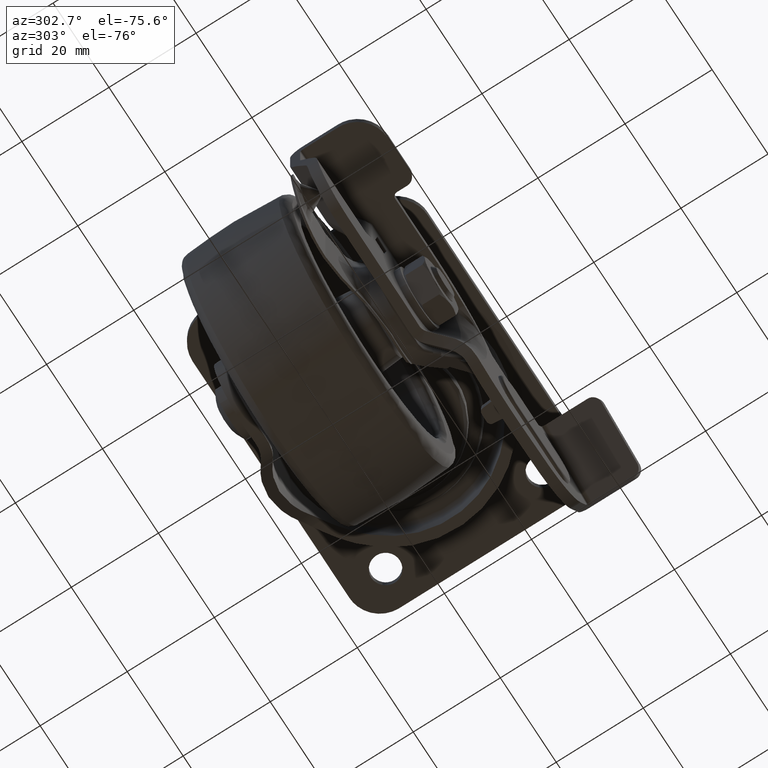
[diagram: clean part render]
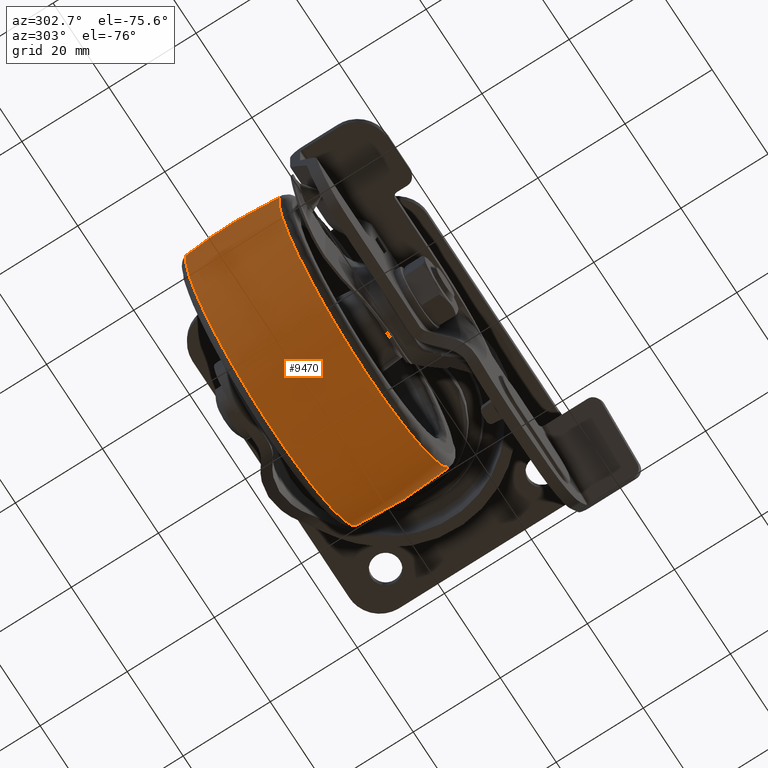
[diagram: same view with one face highlighted and labeled with its STEP entity id]
A machine part, auxiliary view. The second image highlights one B-rep face of the part: STEP entity #9470.
In plain terms, the highlighted face is a freeform B-spline surface patch.
Its self-contained STEP definition (entity closure, byte-faithful):
#8318=CARTESIAN_POINT('',(-15.147315600090741,-10.714285672339919,-77.812728775164445));
#8319=VERTEX_POINT('',#8318);
#8331=CARTESIAN_POINT('',(5.804797996880293,-10.714284824770390,-45.783175648672369));
#8332=VERTEX_POINT('',#8331);
#8333=CARTESIAN_POINT('',(-15.147315600090741,-10.714285672339919,-77.812728775164445));
#8334=CARTESIAN_POINT('',(-12.956917150941210,-10.714285652360561,-77.076997721858191));
#8335=CARTESIAN_POINT('',(-9.085756900598199,-10.714285603763750,-75.270900495800134));
#8336=CARTESIAN_POINT('',(-4.590971312124008,-10.714285514109200,-71.908766926066775));
#8337=CARTESIAN_POINT('',(-1.556125943189460,-10.714285430910390,-68.775817031784527));
#8338=CARTESIAN_POINT('',(0.828183765639484,-10.714285348204600,-65.654242777392682));
#8339=CARTESIAN_POINT('',(2.833944635176843,-10.714285257097901,-62.208526286566681));
#8340=CARTESIAN_POINT('',(4.640518557954514,-10.714285139934789,-57.768556703237138));
#8341=CARTESIAN_POINT('',(5.905911712109960,-10.714284995950820,-52.301331468026731));
#8342=CARTESIAN_POINT('',(6.008160921745331,-10.714284885166689,-48.084835131495431));
#8343=CARTESIAN_POINT('',(5.804797996880293,-10.714284824770390,-45.783175648672369));
#8344=B_SPLINE_CURVE_WITH_KNOTS('',3,(#8333,#8334,#8335,#8336,#8337,#8338,#8339,#8340,#8341,#8342,#8343),.UNSPECIFIED.,.F.,.U.,(4,1,1,1,1,1,1,1,4),(0.000000055326900,6.931848342351579,12.735262670236789,16.765430093014469,19.989565546371519,24.503263900591708,28.694624686934390,34.336853058695063,41.268688920691318),.UNSPECIFIED.);
#8345=EDGE_CURVE('',#8319,#8332,#8344,.T.);
#8461=CARTESIAN_POINT('',(-25.0,-10.714284069167080,-17.575554200752070));
#8462=VERTEX_POINT('',#8461);
#8463=CARTESIAN_POINT('',(5.804797996880293,-10.714284824770390,-45.783175648672369));
#8464=CARTESIAN_POINT('',(5.595506780954307,-10.714284761038479,-43.403986354611490));
#8465=CARTESIAN_POINT('',(4.840309765013501,-10.714284663282770,-39.754636559620678));
#8466=CARTESIAN_POINT('',(2.759066914008306,-10.714284525053120,-34.594355697511190));
#8467=CARTESIAN_POINT('',(0.643506407481044,-10.714284429837420,-31.039828971351660));
#8468=CARTESIAN_POINT('',(-1.778385616886300,-10.714284348458310,-28.001847061095159));
#8469=CARTESIAN_POINT('',(-3.945913584923897,-10.714284288753460,-25.772993682891549));
#8470=CARTESIAN_POINT('',(-6.746880360494585,-10.714284226183580,-23.437171318197560));
#8471=CARTESIAN_POINT('',(-9.669043100055582,-10.714284175950739,-21.561928915144261));
#8472=CARTESIAN_POINT('',(-13.212732931787770,-10.714284129544900,-19.829555075769239));
#8473=CARTESIAN_POINT('',(-16.491459710459829,-10.714284098876719,-18.684641502060611));
#8474=CARTESIAN_POINT('',(-20.641378829398061,-10.714284075018600,-17.793998065783001));
#8475=CARTESIAN_POINT('',(-23.328182015176111,-10.714284069164000,-17.575435377816291));
#8476=CARTESIAN_POINT('',(-25.0,-10.714284069167080,-17.575554200752070));
#8477=B_SPLINE_CURVE_WITH_KNOTS('',3,(#8463,#8464,#8465,#8466,#8467,#8468,#8469,#8470,#8471,#8472,#8473,#8474,#8475,#8476),.UNSPECIFIED.,.F.,.U.,(4,1,1,1,1,1,1,1,1,1,1,4),(0.000000070906282,7.164943963630222,11.105675301968549,16.658519098883819,19.524533836425061,22.748770553097810,25.972925225946039,30.451026503235401,33.137902029489922,37.795135962401091,40.840254886255202,45.855691966843303),.UNSPECIFIED.);
#8478=EDGE_CURVE('',#8332,#8462,#8477,.T.);
#8480=CARTESIAN_POINT('',(-55.717534207942137,-10.714297443348100,-44.929304687004823));
#8481=VERTEX_POINT('',#8480);
#8498=CARTESIAN_POINT('',(-25.0,-10.714285714285760,-79.424281621964795));
#8499=VERTEX_POINT('',#8498);
#8500=CARTESIAN_POINT('',(-55.717534207942137,-10.714297443348100,-44.929304687004823));
#8501=CARTESIAN_POINT('',(-55.968809304529238,-10.714297076432750,-47.087851272721913));
#8502=CARTESIAN_POINT('',(-56.005533896955193,-10.714296396320840,-50.706864275662923));
#8503=CARTESIAN_POINT('',(-55.248469847385522,-10.714295402460580,-55.273446185327117));
#8504=CARTESIAN_POINT('',(-54.242701468797087,-10.714294576374810,-58.733864126376339));
#8505=CARTESIAN_POINT('',(-53.058232249133141,-10.714293827173989,-61.629725985134840));
#8506=CARTESIAN_POINT('',(-51.425423342634879,-10.714292971412840,-64.688251480799551));
#8507=CARTESIAN_POINT('',(-49.535966298132138,-10.714292131230501,-67.436081975675307));
#8508=CARTESIAN_POINT('',(-47.255574619636683,-10.714291250733760,-70.048374406554672));
#8509=CARTESIAN_POINT('',(-44.571289300274053,-10.714290322200579,-72.554300073458492));
#8510=CARTESIAN_POINT('',(-41.362321752303806,-10.714289343469350,-74.857702342813383));
#8511=CARTESIAN_POINT('',(-38.050131803306691,-10.714288453765359,-76.599735057930516));
#8512=CARTESIAN_POINT('',(-34.829319752014477,-10.714287666738580,-77.881708164925527));
#8513=CARTESIAN_POINT('',(-30.636359566084771,-10.714286735653641,-79.057627298952170));
#8514=CARTESIAN_POINT('',(-27.173137151631920,-10.714286081199621,-79.424665531218750));
#8515=CARTESIAN_POINT('',(-25.0,-10.714285714285760,-79.424281621964795));
#8516=B_SPLINE_CURVE_WITH_KNOTS('',3,(#8500,#8501,#8502,#8503,#8504,#8505,#8506,#8507,#8508,#8509,#8510,#8511,#8512,#8513,#8514,#8515),.UNSPECIFIED.,.F.,.U.,(4,1,1,1,1,1,1,1,1,1,1,1,1,4),(0.000000083355900,6.519288755925665,10.797625027171950,13.853558111797120,17.316966502623181,20.169152226720481,24.243743748777892,27.299599785968809,30.559274577788059,35.245058117340307,39.115924072047257,41.764398938088853,45.635247211676322,52.154565402392812),.UNSPECIFIED.);
#8517=EDGE_CURVE('',#8481,#8499,#8516,.T.);
#8519=CARTESIAN_POINT('',(-25.0,-10.714285714285760,-79.424281621964795));
#8520=CARTESIAN_POINT('',(-22.754215307105461,-10.714285714297290,-79.424722782562611));
#8521=CARTESIAN_POINT('',(-19.411918790944750,-10.714285704765000,-79.058498906287170));
#8522=CARTESIAN_POINT('',(-16.186914803394870,-10.714285681434919,-78.162156098572609));
#8523=CARTESIAN_POINT('',(-15.147315600090741,-10.714285672339919,-77.812728775164445));
#8524=B_SPLINE_CURVE_WITH_KNOTS('',3,(#8519,#8520,#8521,#8522,#8523),.UNSPECIFIED.,.F.,.U.,(4,1,4),(3.357286E-009,6.737220548634340,10.027494410101591),.UNSPECIFIED.);
#8525=EDGE_CURVE('',#8499,#8319,#8524,.T.);
#8560=CARTESIAN_POINT('',(5.476901712714515,10.714280158936541,-53.741553493287462));
#8561=VERTEX_POINT('',#8560);
#8562=CARTESIAN_POINT('',(-25.0,10.714272244789260,-17.575552926521318));
#8563=VERTEX_POINT('',#8562);
#8564=CARTESIAN_POINT('',(5.476901712714515,10.714280158936541,-53.741553493287462));
#8565=CARTESIAN_POINT('',(5.774129445372289,10.714279779518749,-52.014229416667007));
#8566=CARTESIAN_POINT('',(6.001695893082466,10.714279194538371,-49.350210940582812));
#8567=CARTESIAN_POINT('',(5.835280636004174,10.714278363611760,-45.564325583677409));
#8568=CARTESIAN_POINT('',(5.376476117913120,10.714277662197420,-42.367343530527762));
#8569=CARTESIAN_POINT('',(4.314833078846657,10.714276767959220,-38.289715974952578));
#8570=CARTESIAN_POINT('',(2.652762816744005,10.714275916827621,-34.406227588643198));
#8571=CARTESIAN_POINT('',(0.595396792936934,10.714275182979859,-31.055553850212291));
#8572=CARTESIAN_POINT('',(-1.737929203245427,10.714274509969719,-27.980998170265881));
#8573=CARTESIAN_POINT('',(-4.564607597939691,10.714273887362680,-25.134219397811570));
#8574=CARTESIAN_POINT('',(-7.890387001724240,10.714273347332940,-22.661764143075409));
#8575=CARTESIAN_POINT('',(-11.105964847363669,10.714272939119800,-20.790205819567870));
#8576=CARTESIAN_POINT('',(-14.975934079753550,10.714272574949209,-19.116849636702540));
#8577=CARTESIAN_POINT('',(-19.741953900217510,10.714272306090979,-17.874357534950860));
#8578=CARTESIAN_POINT('',(-23.247304961592910,10.714272243327990,-17.575409927789909));
#8579=CARTESIAN_POINT('',(-25.0,10.714272244789260,-17.575552926521318));
#8580=B_SPLINE_CURVE_WITH_KNOTS('',3,(#8564,#8565,#8566,#8567,#8568,#8569,#8570,#8571,#8572,#8573,#8574,#8575,#8576,#8577,#8578,#8579),.UNSPECIFIED.,.F.,.U.,(4,1,1,1,1,1,1,1,1,1,1,1,1,4),(0.000000084664343,5.258104177851479,7.992315717452321,11.357516983294669,14.933034645116731,20.611826529533680,23.976989989265640,26.711238851604168,32.179592551609097,35.965460585010973,39.120331630959157,43.326841099342957,48.584976529052547,53.843046028612392),.UNSPECIFIED.);
#8581=EDGE_CURVE('',#8561,#8563,#8580,.T.);
#8633=CARTESIAN_POINT('',(-55.726797465341953,10.714285714806429,-45.009906117078998));
#8634=VERTEX_POINT('',#8633);
#8646=CARTESIAN_POINT('',(-55.717535463991723,10.714285714530099,-44.929304545944291));
#8647=VERTEX_POINT('',#8646);
#8648=CARTESIAN_POINT('',(-55.717535463991723,10.714285714530099,-44.929304545944291));
#8649=CARTESIAN_POINT('',(-55.726797465341953,10.714285714806429,-45.009906117078998));
#8650=QUASI_UNIFORM_CURVE('',1,(#8648,#8649),.UNSPECIFIED.,.F.,.U.);
#8651=EDGE_CURVE('',#8647,#8634,#8650,.T.);
#8695=CARTESIAN_POINT('',(-25.0,10.714285714285740,-79.424281621964795));
#8696=VERTEX_POINT('',#8695);
#8697=CARTESIAN_POINT('',(-25.0,10.714285714285740,-79.424281621964795));
#8698=CARTESIAN_POINT('',(-22.687882300187301,10.714285714398439,-79.424802797773083));
#8699=CARTESIAN_POINT('',(-19.361016689268691,10.714285633171521,-79.049285418743608));
#8700=CARTESIAN_POINT('',(-14.577201401515760,10.714285342856000,-77.707138519009177));
#8701=CARTESIAN_POINT('',(-10.985238398555589,10.714285012442220,-76.179615331568087));
#8702=CARTESIAN_POINT('',(-7.257737463176738,10.714284527382880,-73.937155103223304));
#8703=CARTESIAN_POINT('',(-4.118741326360887,10.714283986255380,-71.435487735583735));
#8704=CARTESIAN_POINT('',(-1.265568872840593,10.714283341936390,-68.456762846620933));
#8705=CARTESIAN_POINT('',(1.451142091243903,10.714282544997561,-64.772463314935408));
#8706=CARTESIAN_POINT('',(3.971689205209377,10.714281489132990,-59.891134725742077));
#8707=CARTESIAN_POINT('',(5.104513375610603,10.714280627792030,-55.909102582295802));
#8708=CARTESIAN_POINT('',(5.476901712714515,10.714280158936541,-53.741553493287462));
#8709=B_SPLINE_CURVE_WITH_KNOTS('',3,(#8697,#8698,#8699,#8700,#8701,#8702,#8703,#8704,#8705,#8706,#8707,#8708),.UNSPECIFIED.,.F.,.U.,(4,1,1,1,1,1,1,1,1,4),(0.000000061474445,6.936183905792021,9.981339943418867,14.887433049267100,18.609314560067631,23.007831579857900,26.898843786495039,30.959072583889029,36.711045310265803,43.308866711360373),.UNSPECIFIED.);
#8710=EDGE_CURVE('',#8696,#8561,#8709,.T.);
#8712=CARTESIAN_POINT('',(-55.726797465341953,10.714285714806429,-45.009906117078998));
#8713=CARTESIAN_POINT('',(-55.918213714000743,10.714285714761450,-46.694150370725971));
#8714=CARTESIAN_POINT('',(-56.025192703262491,10.714285714672110,-50.162209228688923));
#8715=CARTESIAN_POINT('',(-55.412441946426569,10.714285714566230,-54.611618211571873));
#8716=CARTESIAN_POINT('',(-54.210018202296183,10.714285714470281,-58.927810056930738));
#8717=CARTESIAN_POINT('',(-52.554777472888041,10.714285714391020,-62.807539401048210));
#8718=CARTESIAN_POINT('',(-49.963811814969162,10.714285714315080,-66.960202462035440));
#8719=CARTESIAN_POINT('',(-46.539708029266301,10.714285714253890,-70.924826684881978));
#8720=CARTESIAN_POINT('',(-42.345933035062600,10.714285714216460,-74.298950738974497));
#8721=CARTESIAN_POINT('',(-38.227013468633942,10.714285714206580,-76.548319573510923));
#8722=CARTESIAN_POINT('',(-34.558372565865163,10.714285714212540,-77.978147099125380));
#8723=CARTESIAN_POINT('',(-30.356393474953158,10.714285714232510,-79.095219147792108));
#8724=CARTESIAN_POINT('',(-27.034128052149988,10.714285714262330,-79.424575693404037));
#8725=CARTESIAN_POINT('',(-25.0,10.714285714285740,-79.424281621964795));
#8726=B_SPLINE_CURVE_WITH_KNOTS('',3,(#8712,#8713,#8714,#8715,#8716,#8717,#8718,#8719,#8720,#8721,#8722,#8723,#8724,#8725),.UNSPECIFIED.,.F.,.U.,(4,1,1,1,1,1,1,1,1,1,1,4),(0.000000082645194,5.085258957551005,10.373992203310840,13.425185184519840,18.510480396621968,22.985586944411690,28.070784272303211,34.173182811868742,39.055075365270277,42.106268759477103,45.971112876355662,52.073433788754123),.UNSPECIFIED.);
#8727=EDGE_CURVE('',#8634,#8696,#8726,.T.);
#9391=CARTESIAN_POINT('',(-55.596464197992290,-11.790547969181102,-44.943333881735015));
#9392=CARTESIAN_POINT('',(-56.289316711442133,-5.915906232975926,-44.862795547969071));
#9393=CARTESIAN_POINT('',(-56.289316711442147,-3.673834E-015,-44.862795547969057));
#9394=CARTESIAN_POINT('',(-56.289316711442140,5.915901385464990,-44.862795547969057));
#9395=CARTESIAN_POINT('',(-55.596465329482619,11.790538375360065,-44.943333750208680));
#9396=CARTESIAN_POINT('',(-55.802482237789199,-11.790547969181096,-46.715659059259977));
#9397=CARTESIAN_POINT('',(-56.500000000000000,-5.915906232975924,-46.675254773204664));
#9398=CARTESIAN_POINT('',(-56.499999999999993,-3.673834E-015,-46.675254773204649));
#9399=CARTESIAN_POINT('',(-56.499999999999993,5.915901385464993,-46.675254773204671));
#9400=CARTESIAN_POINT('',(-55.802483376898302,11.790538375360061,-46.715658993276172));
#9401=CARTESIAN_POINT('',(-55.802482237789199,-11.790547969181102,-48.499917999999987));
#9402=CARTESIAN_POINT('',(-56.500000000000000,-5.915906232975924,-48.499918000000008));
#9403=CARTESIAN_POINT('',(-56.500000000000000,-3.673834E-015,-48.499918000000001));
#9404=CARTESIAN_POINT('',(-56.500000000000007,5.915901385464993,-48.499918000000001));
#9405=CARTESIAN_POINT('',(-55.802483376898294,11.790538375360066,-48.499918000000001));
#9406=CARTESIAN_POINT('',(-55.802482237789199,-11.790547969181102,-79.302400237789200));
#9407=CARTESIAN_POINT('',(-56.499999999999993,-5.915906232975925,-79.999918000000008));
#9408=CARTESIAN_POINT('',(-56.500000000000000,-3.673834E-015,-79.999918000000008));
#9409=CARTESIAN_POINT('',(-56.500000000000000,5.915901385464993,-79.999918000000008));
#9410=CARTESIAN_POINT('',(-55.802483376898294,11.790538375360065,-79.302401376898288));
#9411=CARTESIAN_POINT('',(-24.999999999999996,-11.790547969181102,-79.302400237789200));
#9412=CARTESIAN_POINT('',(-25.000000000000004,-5.915906232975924,-79.999917999999994));
#9413=CARTESIAN_POINT('',(-25.0,-3.673834E-015,-79.999918000000008));
#9414=CARTESIAN_POINT('',(-25.000000000000004,5.915901385464993,-79.999918000000008));
#9415=CARTESIAN_POINT('',(-24.999999999999996,11.790538375360066,-79.302401376898288));
#9416=CARTESIAN_POINT('',(5.802482237789198,-11.790547969181102,-79.302400237789200));
#9417=CARTESIAN_POINT('',(6.499999999999997,-5.915906232975925,-79.999918000000008));
#9418=CARTESIAN_POINT('',(6.499999999999996,-3.673834E-015,-79.999918000000008));
#9419=CARTESIAN_POINT('',(6.499999999999996,5.915901385464993,-79.999918000000008));
#9420=CARTESIAN_POINT('',(5.802483376898288,11.790538375360065,-79.302401376898288));
#9421=CARTESIAN_POINT('',(5.802482237789199,-11.790547969181102,-48.499917999999987));
#9422=CARTESIAN_POINT('',(6.499999999999999,-5.915906232975924,-48.499918000000008));
#9423=CARTESIAN_POINT('',(6.499999999999999,-3.673834E-015,-48.499918000000001));
#9424=CARTESIAN_POINT('',(6.499999999999998,5.915901385464993,-48.499918000000001));
#9425=CARTESIAN_POINT('',(5.802483376898289,11.790538375360066,-48.499918000000001));
#9426=CARTESIAN_POINT('',(5.802482237789198,-11.790547969181102,-17.697435762210802));
#9427=CARTESIAN_POINT('',(6.499999999999997,-5.915906232975925,-16.999918000000015));
#9428=CARTESIAN_POINT('',(6.499999999999996,-3.673834E-015,-16.999918000000012));
#9429=CARTESIAN_POINT('',(6.499999999999996,5.915901385464993,-16.999918000000001));
#9430=CARTESIAN_POINT('',(5.802483376898288,11.790538375360065,-17.697434623101707));
#9431=CARTESIAN_POINT('',(-24.999999999999996,-11.790547969181102,-17.697435762210798));
#9432=CARTESIAN_POINT('',(-25.000000000000004,-5.915906232975924,-16.999918000000005));
#9433=CARTESIAN_POINT('',(-25.0,-3.673834E-015,-16.999918000000001));
#9434=CARTESIAN_POINT('',(-25.000000000000004,5.915901385464993,-16.999918000000001));
#9435=CARTESIAN_POINT('',(-24.999999999999996,11.790538375360066,-17.697434623101710));
#9443=(BOUNDED_SURFACE()B_SPLINE_SURFACE(2,2,((#9391,#9396,#9401,#9406,#9411,#9416,#9421,#9426,#9431),(#9392,#9397,#9402,#9407,#9412,#9417,#9422,#9427,#9432),(#9393,#9398,#9403,#9408,#9413,#9418,#9423,#9428,#9433),(#9394,#9399,#9404,#9409,#9414,#9419,#9424,#9429,#9434),(#9395,#9400,#9405,#9410,#9415,#9420,#9425,#9430,#9435)),.UNSPECIFIED.,.F.,.F.,.U.)B_SPLINE_SURFACE_WITH_KNOTS((3,2,3),(3,2,2,2,3),(0.0,11.934883939393110,23.869758217576528),(0.0,4.175271837691036,56.366180696701029,108.557089555711000,160.747998414721000),.UNSPECIFIED.)GEOMETRIC_REPRESENTATION_ITEM()RATIONAL_B_SPLINE_SURFACE(((0.937150032950916,0.956426497476097,0.979374668618005,0.692522469502119,0.979374668618005,0.692522469502119,0.979374668618005,0.692522469502119,0.979374668618005),(0.945313907675075,0.964758296903852,0.987906378399240,0.698555299343546,0.987906378399240,0.698555299343546,0.987906378399240,0.698555299343546,0.987906378399240),(0.956886126402807,0.976568547383107,1.0,0.707106781186548,1.0,0.707106781186548,1.0,0.707106781186548,1.0),(0.945313917042710,0.964758306464172,0.987906388188947,0.698555306265914,0.987906388188947,0.698555306265914,0.987906388188947,0.698555306265914,0.987906388188947),(0.937150046168123,0.956426510965172,0.979374682430733,0.692522479269193,0.979374682430733,0.692522479269193,0.979374682430733,0.692522479269193,0.979374682430733)))REPRESENTATION_ITEM('')SURFACE());
#9444=ORIENTED_EDGE('',*,*,#8517,.F.);
#9445=CARTESIAN_POINT('',(-55.717534207942137,-10.714297443348100,-44.929304687004823));
#9446=CARTESIAN_POINT('',(-56.026975704094717,-7.823667760718059,-44.893334683415382));
#9447=CARTESIAN_POINT('',(-56.480192946772441,-0.674801048808397,-44.840651944220930));
#9448=CARTESIAN_POINT('',(-56.169915719077309,6.489523517035460,-44.876719096982328));
#9449=CARTESIAN_POINT('',(-55.717535463991723,10.714285714530099,-44.929304545944291));
#9450=B_SPLINE_CURVE_WITH_KNOTS('',3,(#9445,#9446,#9447,#9448,#9449),.UNSPECIFIED.,.F.,.U.,(4,1,4),(8.352963E-010,8.722110436523204,21.469805084835180),.UNSPECIFIED.);
#9451=EDGE_CURVE('',#8481,#8647,#9450,.T.);
#9452=ORIENTED_EDGE('',*,*,#9451,.T.);
#9453=ORIENTED_EDGE('',*,*,#8651,.T.);
#9454=ORIENTED_EDGE('',*,*,#8727,.T.);
#9455=ORIENTED_EDGE('',*,*,#8710,.T.);
#9456=ORIENTED_EDGE('',*,*,#8581,.T.);
#9457=CARTESIAN_POINT('',(-25.0,-10.714284069167080,-17.575554200752070));
#9458=CARTESIAN_POINT('',(-24.999999999999918,-7.490124286070504,-17.228067143604090));
#9459=CARTESIAN_POINT('',(-25.000000000000298,-0.337404892695291,-16.807746553375509));
#9460=CARTESIAN_POINT('',(-24.999999999999790,6.823049239264057,-17.156105395297160));
#9461=CARTESIAN_POINT('',(-25.0,10.714272244789260,-17.575552926521318));
#9462=B_SPLINE_CURVE_WITH_KNOTS('',3,(#9457,#9458,#9459,#9460,#9461),.UNSPECIFIED.,.F.,.U.,(4,1,4),(8.361880E-010,9.728494683152528,21.469778085457300),.UNSPECIFIED.);
#9463=EDGE_CURVE('',#8462,#8563,#9462,.T.);
#9464=ORIENTED_EDGE('',*,*,#9463,.F.);
#9465=ORIENTED_EDGE('',*,*,#8478,.F.);
#9466=ORIENTED_EDGE('',*,*,#8345,.F.);
#9467=ORIENTED_EDGE('',*,*,#8525,.F.);
#9468=EDGE_LOOP('',(#9444,#9452,#9453,#9454,#9455,#9456,#9464,#9465,#9466,#9467));
#9469=FACE_OUTER_BOUND('',#9468,.T.);
#9470=ADVANCED_FACE('',(#9469),#9443,.T.);